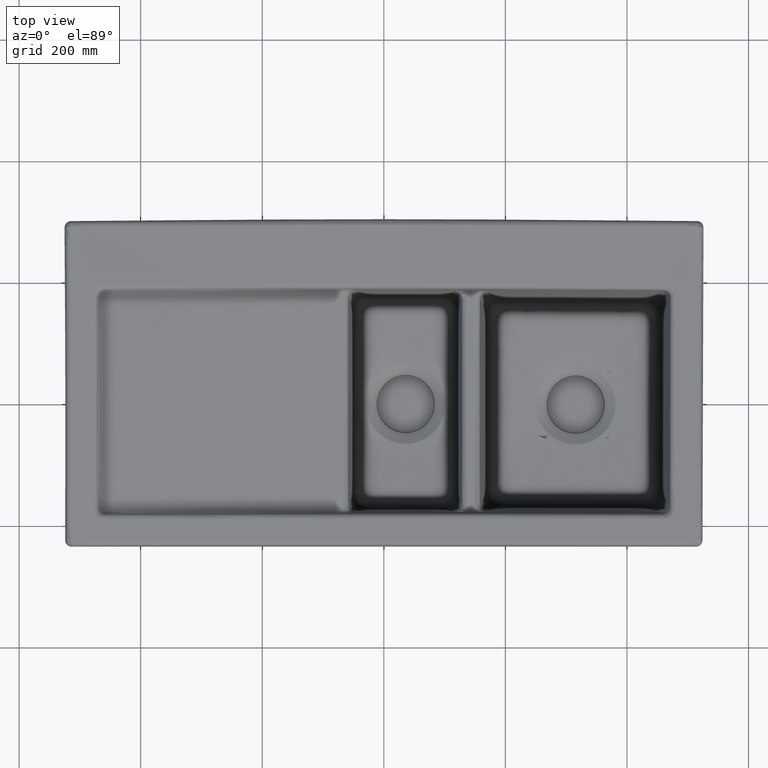
[diagram: clean part render]
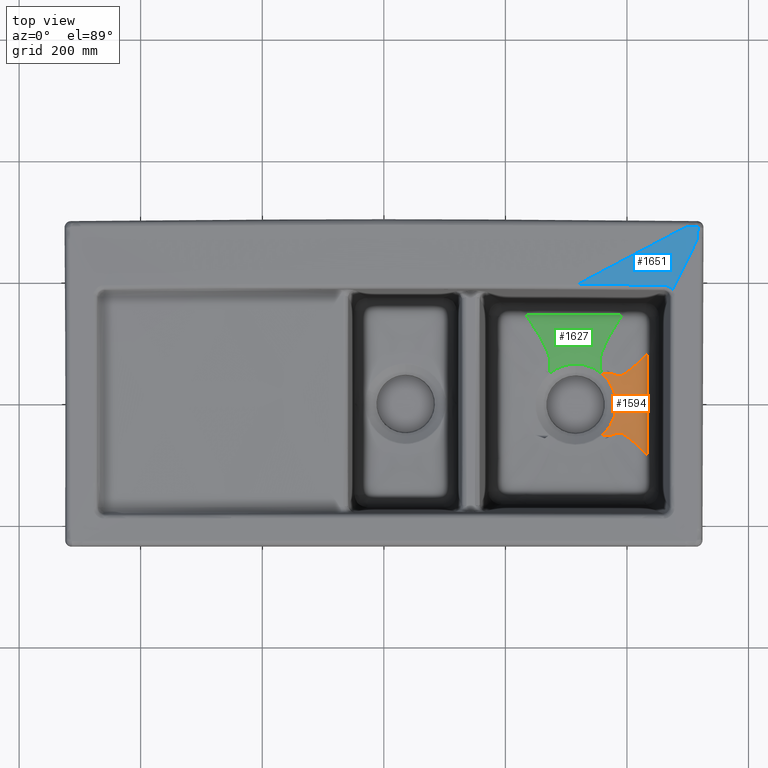
[diagram: same view with three faces highlighted in distinct colors, each labeled with its STEP entity id]
A machine part, top view with three faces highlighted in distinct colors.
Their STEP definitions:

[orange] entity #1594 — the highlighted face is a freeform B-spline surface patch.
#78=(
BOUNDED_CURVE()
B_SPLINE_CURVE(3,(#22522,#22523,#22524,#22525,#22526,#22527,#22528,#22529,
#22530,#22531,#22532,#22533,#22534,#22535,#22536,#22537,#22538,#22539,#22540,
#22541,#22542,#22543,#22544,#22545,#22546,#22547,#22548,#22549,#22550,#22551,
#22552,#22553,#22554,#22555,#22556,#22557,#22558,#22559,#22560,#22561,#22562,
#22563,#22564,#22565,#22566,#22567,#22568,#22569,#22570,#22571,#22572,#22573,
#22574,#22575,#22576,#22577),.UNSPECIFIED.,.F.,.F.)
B_SPLINE_CURVE_WITH_KNOTS((4,2,2,2,2,2,2,2,2,2,2,2,2,2,2,2,2,2,2,2,2,2,
2,2,2,2,2,4),(0.,0.0610077862834872,0.297296441340109,0.533585096396731,
0.65172942392504,0.76987375145335,0.828945915217506,0.88801807898166,0.9027861199227,
0.917554160863739,0.924938181334258,0.928630191569517,0.930476196687148,
0.931399199245962,0.931629949885666,0.931745325205519,0.931803012865445,
0.931860700525369,0.932091451165076,0.932322201804779,0.933245204363593,
0.934168206922407,0.936014212040038,0.939706222275297,0.947090242745816,
0.961858283686856,0.976626324627895,1.),.UNSPECIFIED.)
CURVE()
GEOMETRIC_REPRESENTATION_ITEM()
RATIONAL_B_SPLINE_CURVE((1.,1.,1.,1.,1.,1.,1.,1.,1.,1.,1.,1.,1.,1.,1.,1.,
1.,1.,1.,1.,1.,1.,1.,1.,1.,1.,1.,1.,1.,1.,1.,1.,1.,1.,1.,1.,1.,1.,1.,1.,
1.,1.,1.,1.,1.,1.,1.,1.,1.,1.,1.,1.,1.,1.,1.,1.))
REPRESENTATION_ITEM('')
);
#79=(
BOUNDED_CURVE()
B_SPLINE_CURVE(3,(#22586,#22587,#22588,#22589,#22590,#22591,#22592,#22593,
#22594,#22595,#22596,#22597,#22598,#22599,#22600,#22601,#22602,#22603,#22604,
#22605,#22606,#22607,#22608,#22609,#22610,#22611,#22612,#22613,#22614,#22615,
#22616,#22617,#22618,#22619,#22620,#22621,#22622,#22623,#22624,#22625,#22626,
#22627),.UNSPECIFIED.,.F.,.F.)
B_SPLINE_CURVE_WITH_KNOTS((4,2,2,2,2,2,2,2,2,2,2,2,2,2,2,2,2,2,2,2,4),(0.,
0.0232728312512966,0.0527888471191824,0.0601678510861527,0.067546855053125,
0.0712363570366114,0.0730811080283546,0.0740034835242249,0.0749258590200978,
0.0767706100118407,0.0786153610035816,0.0823048629870677,0.0970628709210108,
0.111820878854953,0.170852910590727,0.229884942326498,0.34794900579804,
0.466013069269584,0.702141196212669,0.938269323155755,1.),.UNSPECIFIED.)
CURVE()
GEOMETRIC_REPRESENTATION_ITEM()
RATIONAL_B_SPLINE_CURVE((1.,1.,1.,1.,1.,1.,1.,1.,1.,1.,1.,1.,1.,1.,1.,1.,
1.,1.,1.,1.,1.,1.,1.,1.,1.,1.,1.,1.,1.,1.,1.,1.,1.,1.,1.,1.,1.,1.,1.,1.,
1.,1.))
REPRESENTATION_ITEM('')
);
#203=B_SPLINE_SURFACE_WITH_KNOTS('',3,3,((#22628,#22629,#22630,#22631,#22632,
#22633,#22634),(#22635,#22636,#22637,#22638,#22639,#22640,#22641),(#22642,
#22643,#22644,#22645,#22646,#22647,#22648),(#22649,#22650,#22651,#22652,
#22653,#22654,#22655)),.UNSPECIFIED.,.F.,.F.,.F.,(4,4),(4,1,1,1,4),(0.,
1.),(0.,0.25,0.5,0.75,1.),.UNSPECIFIED.);
#1042=B_SPLINE_CURVE_WITH_KNOTS('',3,(#21048,#21049,#21050,#21051,#21052,
#21053,#21054,#21055,#21056,#21057,#21058,#21059,#21060,#21061,#21062,#21063,
#21064,#21065),.UNSPECIFIED.,.F.,.F.,(4,2,2,2,2,2,2,2,4),(0.,0.125,0.25,
0.375,0.5,0.625,0.75,0.875,1.),.UNSPECIFIED.);
#1096=B_SPLINE_CURVE_WITH_KNOTS('',3,(#22579,#22580,#22581,#22582,#22583,
#22584),.UNSPECIFIED.,.F.,.F.,(4,2,4),(0.,0.5,1.),.UNSPECIFIED.);
#1594=ADVANCED_FACE('',(#1989),#203,.T.);
#1989=FACE_OUTER_BOUND('',#2397,.T.);
#2397=EDGE_LOOP('',(#3833,#3834,#3835,#3836));
#3833=ORIENTED_EDGE('',*,*,#5621,.F.);
#3834=ORIENTED_EDGE('',*,*,#5622,.F.);
#3835=ORIENTED_EDGE('',*,*,#5623,.F.);
#3836=ORIENTED_EDGE('',*,*,#5563,.T.);
#4761=VERTEX_POINT('',#21046);
#4763=VERTEX_POINT('',#21066);
#4804=VERTEX_POINT('',#22578);
#4805=VERTEX_POINT('',#22585);
#5563=EDGE_CURVE('',#4763,#4761,#1042,.T.);
#5621=EDGE_CURVE('',#4804,#4761,#78,.T.);
#5622=EDGE_CURVE('',#4805,#4804,#1096,.T.);
#5623=EDGE_CURVE('',#4763,#4805,#79,.T.);
#21046=CARTESIAN_POINT('',(358.497882137644,-50.9419843686909,-210.040568185068));
#21048=CARTESIAN_POINT('',(358.456117570233,50.9724743340123,-210.040832312354));
#21049=CARTESIAN_POINT('',(362.17781623035,47.8255287612377,-210.038059094583));
#21050=CARTESIAN_POINT('',(365.526166861855,44.290679344002,-210.034414777755));
#21051=CARTESIAN_POINT('',(371.345259906873,36.6436435570495,-210.027400065886));
#21052=CARTESIAN_POINT('',(373.862285619254,32.4637716277503,-210.024140254946));
#21053=CARTESIAN_POINT('',(377.922186852448,23.6695797686334,-210.016516116105));
#21054=CARTESIAN_POINT('',(379.452067255022,19.1130760336596,-210.012137037443));
#21055=CARTESIAN_POINT('',(381.522179340143,9.68459408842349,-210.006904379918));
#21056=CARTESIAN_POINT('',(382.046411822399,4.80613131080027,-210.006357424514));
#21057=CARTESIAN_POINT('',(382.046334048298,-4.80907494312123,-210.006268906035));
#21058=CARTESIAN_POINT('',(381.531589129072,-9.63603193327556,-210.006714368558));
#21059=CARTESIAN_POINT('',(379.452365321756,-19.1219660223371,-210.011859524779));
#21060=CARTESIAN_POINT('',(377.91795031801,-23.6784567954392,-210.016218582862));
#21061=CARTESIAN_POINT('',(373.882437657384,-32.4271286000807,-210.02377004204));
#21062=CARTESIAN_POINT('',(371.349915641056,-36.6412222213121,-210.027062759324));
#21063=CARTESIAN_POINT('',(365.525323602622,-44.2967194900873,-210.034119425004));
#21064=CARTESIAN_POINT('',(362.217001993933,-47.7918459199433,-210.037751158434));
#21065=CARTESIAN_POINT('',(358.497922343538,-50.9419772118373,-210.040550014543));
#21066=CARTESIAN_POINT('',(358.45518391403,50.9732004148328,-210.040847818137));
#22522=CARTESIAN_POINT('',(433.202241627358,-83.0969867446801,-203.517666930961));
#22523=CARTESIAN_POINT('',(432.298799158883,-82.1785918657324,-203.616319376753));
#22524=CARTESIAN_POINT('',(431.394271292579,-81.2628077719636,-203.715220193982));
#22525=CARTESIAN_POINT('',(426.980637149954,-76.8136369703662,-204.198442188593));
#22526=CARTESIAN_POINT('',(423.454786759446,-73.3196658080626,-204.586429506773));
#22527=CARTESIAN_POINT('',(416.322224767708,-66.46337762036,-205.374089190607));
#22528=CARTESIAN_POINT('',(412.721503140097,-63.0976824201508,-205.773354508192));
#22529=CARTESIAN_POINT('',(407.145253609482,-58.2328373162663,-206.389579945));
#22530=CARTESIAN_POINT('',(405.256773551867,-56.6420899856889,-206.597922914085));
#22531=CARTESIAN_POINT('',(401.350011632034,-53.5649543305447,-207.025353930384));
#22532=CARTESIAN_POINT('',(399.34059962421,-52.0748700811842,-207.243855095961));
#22533=CARTESIAN_POINT('',(396.06262441446,-50.0048940434848,-207.590832450459));
#22534=CARTESIAN_POINT('',(394.925995499988,-49.3425170001398,-207.709698969681));
#22535=CARTESIAN_POINT('',(392.456361872084,-48.123415604103,-207.960917691198));
#22536=CARTESIAN_POINT('',(391.156016598341,-47.5524835029997,-208.091149268023));
#22537=CARTESIAN_POINT('',(389.103611163306,-47.0390936434378,-208.28205920733));
#22538=CARTESIAN_POINT('',(388.669465899272,-46.9475414558696,-208.321793065612));
#22539=CARTESIAN_POINT('',(387.701766651594,-46.809469841025,-208.40775935332));
#22540=CARTESIAN_POINT('',(387.182259155792,-46.7569032377426,-208.45308094106));
#22541=CARTESIAN_POINT('',(386.156176365845,-46.7866035874812,-208.537155205776));
#22542=CARTESIAN_POINT('',(385.78263621935,-46.8105837641516,-208.567251662851));
#22543=CARTESIAN_POINT('',(384.983643948205,-46.9492508479324,-208.627817224955));
#22544=CARTESIAN_POINT('',(384.688509589242,-47.0080883106319,-208.649890025732));
#22545=CARTESIAN_POINT('',(384.00219980727,-47.1989472106145,-208.698525105319));
#22546=CARTESIAN_POINT('',(383.750274275495,-47.2726168935291,-208.716246673118));
#22547=CARTESIAN_POINT('',(383.082930523105,-47.5024883990486,-208.760991642048));
#22548=CARTESIAN_POINT('',(382.878888524071,-47.5724660618343,-208.774864686034));
#22549=CARTESIAN_POINT('',(382.133287256721,-47.8576066057858,-208.822435004912));
#22550=CARTESIAN_POINT('',(381.975080546356,-47.9185254998789,-208.8325348522));
#22551=CARTESIAN_POINT('',(381.47141962884,-48.1153498409861,-208.863871950859));
#22552=CARTESIAN_POINT('',(381.302969582943,-48.1825130671538,-208.874494432316));
#22553=CARTESIAN_POINT('',(380.489368182098,-48.4984830944025,-208.923714373373));
#22554=CARTESIAN_POINT('',(380.138063528194,-48.6331734392792,-208.94467639348));
#22555=CARTESIAN_POINT('',(379.703523038747,-48.7970399407256,-208.970382685634));
#22556=CARTESIAN_POINT('',(379.559902203933,-48.8500193891377,-208.978802711669));
#22557=CARTESIAN_POINT('',(378.926863625666,-49.082479042273,-209.015838082908));
#22558=CARTESIAN_POINT('',(378.707603545702,-49.1574912556255,-209.028372400226));
#22559=CARTESIAN_POINT('',(378.265646610673,-49.3096884438014,-209.05373709918));
#22560=CARTESIAN_POINT('',(378.092013174723,-49.3677540957528,-209.063631907388));
#22561=CARTESIAN_POINT('',(377.311173038524,-49.6251294460145,-209.107997310148));
#22562=CARTESIAN_POINT('',(376.941124567074,-49.73491714791,-209.128597860609));
#22563=CARTESIAN_POINT('',(376.255296022998,-49.9348196416442,-209.166714459715));
#22564=CARTESIAN_POINT('',(375.971211361151,-50.0128544155562,-209.182363687106));
#22565=CARTESIAN_POINT('',(375.19457895276,-50.2190533212344,-209.224954969865));
#22566=CARTESIAN_POINT('',(374.779697077611,-50.3185179178542,-209.247418773673));
#22567=CARTESIAN_POINT('',(373.648139858525,-50.5756728678319,-209.308333569726));
#22568=CARTESIAN_POINT('',(373.052917656836,-50.6889364215,-209.339816357627));
#22569=CARTESIAN_POINT('',(371.425955022789,-50.9717091755561,-209.425207519728));
#22570=CARTESIAN_POINT('',(370.570962575127,-51.0774197196436,-209.46900831738));
#22571=CARTESIAN_POINT('',(368.22285176413,-51.3179292526264,-209.587986587736));
#22572=CARTESIAN_POINT('',(366.976761619257,-51.3648784299068,-209.648999006814));
#22573=CARTESIAN_POINT('',(364.681548996327,-51.3906413475778,-209.759510972043));
#22574=CARTESIAN_POINT('',(363.652823801963,-51.3621973380754,-209.80785246511));
#22575=CARTESIAN_POINT('',(361.156985923523,-51.2337354783561,-209.923144923965));
#22576=CARTESIAN_POINT('',(359.785791715356,-51.1030655084614,-209.984413315316));
#22577=CARTESIAN_POINT('',(358.497862853593,-50.9419365542304,-210.040593918986));
#22578=CARTESIAN_POINT('',(433.202246314796,-83.0963916593351,-203.517666470247));
#22579=CARTESIAN_POINT('',(433.487753638027,83.7206437342547,-203.515454341389));
#22580=CARTESIAN_POINT('',(433.624520249142,55.9175676126171,-203.630298177664));
#22581=CARTESIAN_POINT('',(433.741142538529,28.1145621965469,-203.712195861682));
#22582=CARTESIAN_POINT('',(433.646936300709,-27.4909281997848,-203.713160765162));
#22583=CARTESIAN_POINT('',(433.435450804278,-55.293363245286,-203.632160836081));
#22584=CARTESIAN_POINT('',(433.202251000344,-83.0957967728058,-203.517666007785));
#22585=CARTESIAN_POINT('',(433.487591358513,83.7213080526835,-203.515470179784));
#22586=CARTESIAN_POINT('',(358.455170751092,50.9739435331308,-210.040835569174));
#22587=CARTESIAN_POINT('',(359.711436104165,51.1426505314235,-209.985970149013));
#22588=CARTESIAN_POINT('',(361.042853257536,51.283565332736,-209.926422899165));
#22589=CARTESIAN_POINT('',(364.369848306532,51.5008285031027,-209.772769311274));
#22590=CARTESIAN_POINT('',(366.368203510601,51.5759299854346,-209.67826804191));
#22591=CARTESIAN_POINT('',(369.816225735532,51.3278810686371,-209.504544416725));
#22592=CARTESIAN_POINT('',(370.559208811997,51.2590547506645,-209.466683121784));
#22593=CARTESIAN_POINT('',(372.269250384943,51.0395732502656,-209.377927120536));
#22594=CARTESIAN_POINT('',(373.204141949361,50.9011740569809,-209.328930878275));
#22595=CARTESIAN_POINT('',(375.160669831048,50.4870134932231,-209.22306635297));
#22596=CARTESIAN_POINT('',(375.872711492668,50.3273884065541,-209.184357687507));
#22597=CARTESIAN_POINT('',(377.539979453154,49.8585430271654,-209.090741475446));
#22598=CARTESIAN_POINT('',(378.155275917794,49.6817686248559,-209.056289354291));
#22599=CARTESIAN_POINT('',(379.852942379618,49.1051042874396,-208.956851157082));
#22600=CARTESIAN_POINT('',(380.660673749925,48.814285686516,-208.908630306323));
#22601=CARTESIAN_POINT('',(381.938959665404,48.3441225237516,-208.829818646266));
#22602=CARTESIAN_POINT('',(382.346536511408,48.1945473476558,-208.803677715479));
#22603=CARTESIAN_POINT('',(383.292446815997,47.8582088519066,-208.742412342732));
#22604=CARTESIAN_POINT('',(383.62123146846,47.7536721844454,-208.719907371731));
#22605=CARTESIAN_POINT('',(384.208783675635,47.5750739363681,-208.679483839251));
#22606=CARTESIAN_POINT('',(384.434300357778,47.5137648461778,-208.663531590522));
#22607=CARTESIAN_POINT('',(385.03325866329,47.3623835530163,-208.620600499603));
#22608=CARTESIAN_POINT('',(385.325890890995,47.3060538587573,-208.598733217008));
#22609=CARTESIAN_POINT('',(386.629996828593,47.0929028483154,-208.499675806454));
#22610=CARTESIAN_POINT('',(387.204150177901,47.123668252031,-208.450647266386));
#22611=CARTESIAN_POINT('',(388.324584210431,47.2013769491297,-208.354662799675));
#22612=CARTESIAN_POINT('',(388.800212232123,47.2778441214098,-208.312205635962));
#22613=CARTESIAN_POINT('',(391.019650707724,47.7331831948536,-208.110392506076));
#22614=CARTESIAN_POINT('',(392.336208400936,48.3096747368513,-207.979222781824));
#22615=CARTESIAN_POINT('',(394.861510806282,49.5299928463952,-207.724621305581));
#22616=CARTESIAN_POINT('',(396.014534020013,50.1981115989266,-207.604829765402));
#22617=CARTESIAN_POINT('',(399.335163672986,52.2882072321302,-207.255517976198));
#22618=CARTESIAN_POINT('',(401.362193271324,53.7965127148559,-207.036189174804));
#22619=CARTESIAN_POINT('',(405.302194246368,56.9109341878643,-206.607250006661));
#22620=CARTESIAN_POINT('',(407.205514583251,58.5215909981511,-206.398262249277));
#22621=CARTESIAN_POINT('',(412.824657734749,63.4471341175396,-205.780227031532));
#22622=CARTESIAN_POINT('',(416.451476287113,66.8544430271478,-205.379952527326));
#22623=CARTESIAN_POINT('',(423.635968142943,73.7941761078057,-204.590346820213));
#22624=CARTESIAN_POINT('',(427.187140517685,77.3298275686295,-204.201467883306));
#22625=CARTESIAN_POINT('',(431.643956568073,81.8428575411209,-203.715920334014));
#22626=CARTESIAN_POINT('',(432.566406981061,82.7810206199454,-203.615559996245));
#22627=CARTESIAN_POINT('',(433.487748302931,83.7218576782189,-203.515455434946));
#22628=CARTESIAN_POINT('',(450.577156144425,164.034894348946,-201.680685949538));
#22629=CARTESIAN_POINT('',(450.555255580338,136.77198589414,-201.680685949538));
#22630=CARTESIAN_POINT('',(450.498717115148,82.2461792165595,-201.680685949538));
#22631=CARTESIAN_POINT('',(450.375697437282,0.457517749049612,-201.680685949538));
#22632=CARTESIAN_POINT('',(450.214465810303,-81.3310773168306,-201.680685949538));
#22633=CARTESIAN_POINT('',(450.081503446886,-135.856751191152,-201.680685949538));
#22634=CARTESIAN_POINT('',(450.008653617313,-163.119571110452,-201.680685949538));
#22635=CARTESIAN_POINT('',(419.537842002425,126.300764839308,-204.481806397538));
#22636=CARTESIAN_POINT('',(422.009059978592,106.072808538295,-204.481806397538));
#22637=CARTESIAN_POINT('',(426.02312395467,64.5063016497581,-204.481806397538));
#22638=CARTESIAN_POINT('',(428.107660104709,0.312084361775911,-204.481806397538));
#22639=CARTESIAN_POINT('',(425.840465040064,-63.8836192933576,-204.481806397538));
#22640=CARTESIAN_POINT('',(421.703759024827,-105.452903372885,-204.481806397538));
#22641=CARTESIAN_POINT('',(419.170827225916,-125.682559107282,-204.481806397538));
#22642=CARTESIAN_POINT('',(388.498527860424,88.5666353296706,-207.282926845538));
#22643=CARTESIAN_POINT('',(393.462864376847,75.3736311824505,-207.282926845538));
#22644=CARTESIAN_POINT('',(401.547530794194,46.7664240829565,-207.282926845539));
#22645=CARTESIAN_POINT('',(405.839622772135,0.166650974502186,-207.282926845538));
#22646=CARTESIAN_POINT('',(401.466464269824,-46.4361612698847,-207.282926845538));
#22647=CARTESIAN_POINT('',(393.326014602768,-75.0490555546186,-207.282926845538));
#22648=CARTESIAN_POINT('',(388.333000834518,-88.2455471041116,-207.282926845538));
#22649=CARTESIAN_POINT('',(357.459213718424,50.832505820033,-210.084047293538));
#22650=CARTESIAN_POINT('',(364.916668775101,44.6744538266056,-210.084047293538));
#22651=CARTESIAN_POINT('',(377.071937633717,29.0265465161551,-210.084047293538));
#22652=CARTESIAN_POINT('',(383.571585439562,0.0212175872284802,-210.084047293538));
#22653=CARTESIAN_POINT('',(377.092463499585,-28.9887032464116,-210.084047293538));
#22654=CARTESIAN_POINT('',(364.948270180709,-44.645207736352,-210.084047293538));
#22655=CARTESIAN_POINT('',(357.495174443119,-50.8085351009416,-210.084047293538));

[blue] entity #1651 — the highlighted face is a freeform B-spline surface patch.
#220=B_SPLINE_SURFACE_WITH_KNOTS('',3,3,((#25985,#25986,#25987,#25988,#25989,
#25990,#25991,#25992),(#25993,#25994,#25995,#25996,#25997,#25998,#25999,
#26000),(#26001,#26002,#26003,#26004,#26005,#26006,#26007,#26008),(#26009,
#26010,#26011,#26012,#26013,#26014,#26015,#26016),(#26017,#26018,#26019,
#26020,#26021,#26022,#26023,#26024)),.UNSPECIFIED.,.F.,.F.,.F.,(4,1,4),
(4,1,2,1,4),(0.,0.908887970062574,1.),(0.,8.19642226482332E-5,0.250061473166986,
0.500040982111324,1.),.UNSPECIFIED.);
#1141=B_SPLINE_CURVE_WITH_KNOTS('',3,(#24036,#24037,#24038,#24039,#24040,
#24041,#24042,#24043,#24044,#24045),.UNSPECIFIED.,.F.,.F.,(4,3,3,4),(0.,
0.239048257565316,0.56542278300815,1.),.UNSPECIFIED.);
#1143=B_SPLINE_CURVE_WITH_KNOTS('',3,(#24059,#24060,#24061,#24062,#24063,
#24064,#24065,#24066,#24067,#24068,#24069,#24070,#24071,#24072),
 .UNSPECIFIED.,.F.,.F.,(4,2,2,2,2,2,4),(0.,0.249999999999996,0.37499999999999,
0.437499999999987,0.468749999999985,0.499999999999983,1.),.UNSPECIFIED.);
#1144=B_SPLINE_CURVE_WITH_KNOTS('',3,(#24087,#24088,#24089,#24090,#24091,
#24092),.UNSPECIFIED.,.F.,.F.,(4,2,4),(0.,0.5,1.),.UNSPECIFIED.);
#1145=B_SPLINE_CURVE_WITH_KNOTS('',3,(#24113,#24114,#24115,#24116),
 .UNSPECIFIED.,.F.,.F.,(4,4),(0.,1.),.UNSPECIFIED.);
#1174=B_SPLINE_CURVE_WITH_KNOTS('',3,(#25029,#25030,#25031,#25032,#25033,
#25034),.UNSPECIFIED.,.F.,.F.,(4,2,4),(0.,0.5,1.),.UNSPECIFIED.);
#1208=B_SPLINE_CURVE_WITH_KNOTS('',3,(#25962,#25963,#25964,#25965,#25966,
#25967,#25968,#25969,#25970,#25971,#25972,#25973,#25974,#25975),
 .UNSPECIFIED.,.F.,.F.,(4,2,2,1,1,2,2,4),(0.,0.249999999999994,0.374999999999992,
0.43749999999999,0.46874999999999,0.48437499999999,0.49999999999999,1.),
 .UNSPECIFIED.);
#1209=B_SPLINE_CURVE_WITH_KNOTS('',3,(#25977,#25978,#25979,#25980,#25981,
#25982,#25983,#25984),.UNSPECIFIED.,.F.,.F.,(4,2,2,4),(0.,0.25,0.5,1.),
 .UNSPECIFIED.);
#1651=ADVANCED_FACE('',(#2045),#220,.T.);
#2045=FACE_OUTER_BOUND('',#2455,.T.);
#2455=EDGE_LOOP('',(#4092,#4093,#4094,#4095,#4096,#4097,#4098));
#4092=ORIENTED_EDGE('',*,*,#5674,.T.);
#4093=ORIENTED_EDGE('',*,*,#5676,.T.);
#4094=ORIENTED_EDGE('',*,*,#5678,.T.);
#4095=ORIENTED_EDGE('',*,*,#5680,.T.);
#4096=ORIENTED_EDGE('',*,*,#5758,.F.);
#4097=ORIENTED_EDGE('',*,*,#5759,.F.);
#4098=ORIENTED_EDGE('',*,*,#5716,.T.);
#4777=VERTEX_POINT('',#21444);
#4837=VERTEX_POINT('',#24046);
#4838=VERTEX_POINT('',#24073);
#4839=VERTEX_POINT('',#24093);
#4840=VERTEX_POINT('',#24117);
#4862=VERTEX_POINT('',#25022);
#4883=VERTEX_POINT('',#25976);
#5674=EDGE_CURVE('',#4837,#4777,#1141,.T.);
#5676=EDGE_CURVE('',#4777,#4838,#1143,.T.);
#5678=EDGE_CURVE('',#4838,#4839,#1144,.T.);
#5680=EDGE_CURVE('',#4839,#4840,#1145,.T.);
#5716=EDGE_CURVE('',#4862,#4837,#1174,.T.);
#5758=EDGE_CURVE('',#4883,#4840,#1208,.T.);
#5759=EDGE_CURVE('',#4862,#4883,#1209,.T.);
#21444=CARTESIAN_POINT('',(516.446736534157,269.01305745754,-0.175441380758714));
#24036=CARTESIAN_POINT('',(475.208255054806,184.960913218194,-0.980098338971812));
#24037=CARTESIAN_POINT('',(478.494250644398,191.658419032928,-0.915936697720103));
#24038=CARTESIAN_POINT('',(481.780246284851,198.355924951329,-0.851788481592517));
#24039=CARTESIAN_POINT('',(485.066241967431,205.053430955591,-0.787651391158569));
#24040=CARTESIAN_POINT('',(489.55263853201,214.197590239811,-0.700084501247419));
#24041=CARTESIAN_POINT('',(494.039035174998,223.341749683845,-0.612538315514412));
#24042=CARTESIAN_POINT('',(498.525431879677,232.485909253617,-0.525008430012553));
#24043=CARTESIAN_POINT('',(504.499200180349,244.661624904711,-0.408459829923975));
#24044=CARTESIAN_POINT('',(510.472968590235,256.837340778409,-0.291940080894623));
#24045=CARTESIAN_POINT('',(516.446737081629,269.013056818233,-0.175441877463997));
#24046=CARTESIAN_POINT('',(475.208255031958,184.960913136863,-0.980098339411022));
#24059=CARTESIAN_POINT('',(516.446739448505,269.013061698168,-0.175440476057008));
#24060=CARTESIAN_POINT('',(516.477897712985,270.70789378029,-0.175282992977767));
#24061=CARTESIAN_POINT('',(516.50576241237,272.314221265255,-0.173986251019491));
#24062=CARTESIAN_POINT('',(516.550704697397,274.591043736892,-0.170160034224742));
#24063=CARTESIAN_POINT('',(516.566032306476,275.32787112336,-0.168577284339778));
#24064=CARTESIAN_POINT('',(516.588958392306,276.399935266358,-0.165769233253593));
#24065=CARTESIAN_POINT('',(516.596578447174,276.751760367667,-0.164761194433995));
#24066=CARTESIAN_POINT('',(516.607802594273,277.271201640288,-0.16314689483246));
#24067=CARTESIAN_POINT('',(516.611508961211,277.442965993547,-0.162591769867729));
#24068=CARTESIAN_POINT('',(516.618814520267,277.783728805503,-0.161448603040562));
#24069=CARTESIAN_POINT('',(516.621609605125,277.914483599834,-0.160998345650365));
#24070=CARTESIAN_POINT('',(516.695191866453,281.414085498419,-0.148389994197248));
#24071=CARTESIAN_POINT('',(516.763588000939,284.449640757612,-0.12863104705671));
#24072=CARTESIAN_POINT('',(516.828790846848,287.226956899292,-0.102529113809366));
#24073=CARTESIAN_POINT('',(516.828790846848,287.226956899292,-0.102529113812705));
#24087=CARTESIAN_POINT('',(516.828790846849,287.226956899293,-0.102529113809354));
#24088=CARTESIAN_POINT('',(516.842083688606,287.796349433827,-0.0971781579177916));
#24089=CARTESIAN_POINT('',(516.64999671882,288.300684348284,-0.093061072673536));
#24090=CARTESIAN_POINT('',(515.851894427042,289.119469935868,-0.0855100257305097));
#24091=CARTESIAN_POINT('',(515.378333896411,289.328156243465,-0.0832160697923159));
#24092=CARTESIAN_POINT('',(514.787501006382,289.335661667216,-0.0835268603915914));
#24093=CARTESIAN_POINT('',(514.787501006382,289.335661667216,-0.0835268603915912));
#24113=CARTESIAN_POINT('',(514.787501006383,289.335661667216,-0.0835268603915934));
#24114=CARTESIAN_POINT('',(510.484324661276,289.389987663788,-0.0857942951637962));
#24115=CARTESIAN_POINT('',(505.23769233254,289.456601389833,-0.0802014256164676));
#24116=CARTESIAN_POINT('',(499.082623764876,289.535899487059,-0.0801170300530998));
#24117=CARTESIAN_POINT('',(499.08250376496,289.53557961454,-0.0801200516222219));
#25022=CARTESIAN_POINT('',(459.896632546471,192.681304564644,-1.21769703776755));
#25029=CARTESIAN_POINT('',(459.896642472061,192.681586267081,-1.21769580720752));
#25030=CARTESIAN_POINT('',(462.884460708328,192.660739915363,-1.17978188603772));
#25031=CARTESIAN_POINT('',(465.826155954547,191.956508175506,-1.13966769757462));
#25032=CARTESIAN_POINT('',(471.096978977319,189.312471686787,-1.05781496839192));
#25033=CARTESIAN_POINT('',(473.430876268721,187.364239248272,-1.01599849621216));
#25034=CARTESIAN_POINT('',(475.208255054805,184.960913218194,-0.980098338971812));
#25962=CARTESIAN_POINT('',(318.624146316854,193.900655174319,-0.981208514046513));
#25963=CARTESIAN_POINT('',(333.396850165145,201.729553887878,-0.90771814447743));
#25964=CARTESIAN_POINT('',(348.302584278535,209.628999317122,-0.833496665378091));
#25965=CARTESIAN_POINT('',(370.860159625945,221.583545979832,-0.721067782433697));
#25966=CARTESIAN_POINT('',(378.412509117079,225.585958351986,-0.683408710736334));
#25967=CARTESIAN_POINT('',(389.790656636266,231.615870603105,-0.626645937116445));
#25968=CARTESIAN_POINT('',(395.492135780334,234.637400190641,-0.598196008788038));
#25969=CARTESIAN_POINT('',(402.165541484878,238.17401074161,-0.564884478080923));
#25970=CARTESIAN_POINT('',(405.030214780576,239.692162562101,-0.550582404708451));
#25971=CARTESIAN_POINT('',(406.941028204905,240.70481066893,-0.541041977333598));
#25972=CARTESIAN_POINT('',(407.92963754297,241.228730879714,-0.536105686742481));
#25973=CARTESIAN_POINT('',(438.413411619567,257.383820595773,-0.383886439115526));
#25974=CARTESIAN_POINT('',(468.49098213265,273.323643006569,-0.233427809594995));
#25975=CARTESIAN_POINT('',(499.082623763513,289.535899490232,-0.0801170937073426));
#25976=CARTESIAN_POINT('',(318.624146245888,193.900655148922,-0.981208464271422));
#25977=CARTESIAN_POINT('',(459.896607891893,192.68102335113,-1.21769845371918));
#25978=CARTESIAN_POINT('',(448.124403429845,192.763263386739,-1.36708291627075));
#25979=CARTESIAN_POINT('',(436.35182958095,192.843828852218,-1.43834682564091));
#25980=CARTESIAN_POINT('',(412.805984328625,193.002790459094,-1.43186978111333));
#25981=CARTESIAN_POINT('',(401.033018492145,193.084175792302,-1.32276253195519));
#25982=CARTESIAN_POINT('',(365.715727955275,193.46529397869,-1.06471200861281));
#25983=CARTESIAN_POINT('',(342.170240034224,193.695291546041,-0.98152015566927));
#25984=CARTESIAN_POINT('',(318.624146174742,193.900655098453,-0.981208454740543));
#25985=CARTESIAN_POINT('',(471.634408928302,177.619493632134,-1.04987493624814));
#25986=CARTESIAN_POINT('',(471.62529012979,177.619980297515,-1.05005672450354));
#25987=CARTESIAN_POINT('',(443.805099472892,179.104728827215,-1.60453215631094));
#25988=CARTESIAN_POINT('',(415.980759020357,180.589363462317,-1.74610456107419));
#25989=CARTESIAN_POINT('',(360.34202428227,183.557431836556,-1.20389177892801));
#25990=CARTESIAN_POINT('',(276.888062592877,188.009427264527,-0.779313776926908));
#25991=CARTESIAN_POINT('',(193.446522156701,192.461101292333,-1.52095928858034));
#25992=CARTESIAN_POINT('',(137.818828532584,195.428883977538,-2.01538962968262));
#25993=CARTESIAN_POINT('',(489.571442696396,214.196033683939,-0.699585838582428));
#25994=CARTESIAN_POINT('',(489.565174488106,214.196552222416,-0.699711524522477));
#25995=CARTESIAN_POINT('',(470.441739570113,215.778541154453,-1.08306882370771));
#25996=CARTESIAN_POINT('',(451.315396510297,217.360433604829,-1.18243997761587));
#25997=CARTESIAN_POINT('',(413.069436242921,220.522988655049,-0.813517126543371));
#25998=CARTESIAN_POINT('',(355.703382360537,225.266693998358,-0.517340940470798));
#25999=CARTESIAN_POINT('',(298.345988034189,230.010017645601,-0.992789026006754));
#26000=CARTESIAN_POINT('',(260.107725149958,233.17223341043,-1.30975441636406));
#26001=CARTESIAN_POINT('',(509.306587215228,254.439214469193,-0.314625954778342));
#26002=CARTESIAN_POINT('',(509.30345530046,254.439768170402,-0.314689048800347));
#26003=CARTESIAN_POINT('',(499.748417341283,256.129033656985,-0.507134139697735));
#26004=CARTESIAN_POINT('',(490.191958187287,257.818018649918,-0.559162303979106));
#26005=CARTESIAN_POINT('',(471.082464114194,261.194320797703,-0.382534743298782));
#26006=CARTESIAN_POINT('',(442.419656556003,266.258716659134,-0.228203900867133));
#26007=CARTESIAN_POINT('',(413.761149652159,271.322940439822,-0.405704554201993));
#26008=CARTESIAN_POINT('',(394.655478382928,274.699089626948,-0.524038323091901));
#26009=CARTESIAN_POINT('',(529.041732100947,294.682397215083,0.0701519931728121));
#26010=CARTESIAN_POINT('',(529.041736585098,294.682985889464,0.0701519080316443));
#26011=CARTESIAN_POINT('',(529.055417055868,296.478949744944,0.0698908759265835));
#26012=CARTESIAN_POINT('',(529.068939099569,298.274850902046,0.0657295525891747));
#26013=CARTESIAN_POINT('',(529.095657676103,301.865350594037,0.0496141642698648));
#26014=CARTESIAN_POINT('',(529.135797146884,307.250960922426,0.0624538626433942));
#26015=CARTESIAN_POINT('',(529.176121435597,312.636153622021,0.186331903574406));
#26016=CARTESIAN_POINT('',(529.203004294739,316.226282088419,0.26891726419508));
#26017=CARTESIAN_POINT('',(530.839841215335,298.349035300848,0.105208534166363));
#26018=CARTESIAN_POINT('',(530.840131463945,298.349627160291,0.10521419300662));
#26019=CARTESIAN_POINT('',(531.725639695907,300.155308202155,0.122472940354634));
#26020=CARTESIAN_POINT('',(532.611102879688,301.960949390597,0.122676774824567));
#26021=CARTESIAN_POINT('',(534.381358742263,305.570968420135,0.0889968415038604));
#26022=CARTESIAN_POINT('',(537.036679746536,310.985849164144,0.0889476401197149));
#26023=CARTESIAN_POINT('',(539.691812382041,316.400286507261,0.240310534526314));
#26024=CARTESIAN_POINT('',(541.461900805711,320.009911402674,0.34121913079738));

[green] entity #1627 — the highlighted face is a freeform B-spline surface patch.
#85=(
BOUNDED_CURVE()
B_SPLINE_CURVE(3,(#24767,#24768,#24769,#24770,#24771,#24772,#24773,#24774,
#24775,#24776,#24777,#24778,#24779,#24780,#24781,#24782,#24783,#24784,#24785,
#24786,#24787,#24788,#24789,#24790,#24791,#24792,#24793,#24794,#24795,#24796,
#24797,#24798,#24799,#24800,#24801,#24802,#24803,#24804,#24805,#24806,#24807,
#24808),.UNSPECIFIED.,.F.,.F.)
B_SPLINE_CURVE_WITH_KNOTS((4,2,2,2,2,2,2,2,2,2,2,2,2,2,2,2,2,2,2,2,4),(0.,
0.329023824247799,0.498018952772632,0.667014081297463,0.75151164555988,
0.836009209822295,0.878257991953503,0.920506774084712,0.931068969617514,
0.941631165150316,0.944271714033517,0.945591988475116,0.946912262916716,
0.947572400137517,0.948232537358317,0.949552811799917,0.952193360683118,
0.95747445844952,0.96275555621592,0.983879947281524,1.),.UNSPECIFIED.)
CURVE()
GEOMETRIC_REPRESENTATION_ITEM()
RATIONAL_B_SPLINE_CURVE((1.,1.,1.,1.,1.,1.,1.,1.,1.,1.,1.,1.,1.,1.,1.,1.,
1.,1.,1.,1.,1.,1.,1.,1.,1.,1.,1.,1.,1.,1.,1.,1.,1.,1.,1.,1.,1.,1.,1.,1.,
1.,1.))
REPRESENTATION_ITEM('')
);
#213=B_SPLINE_SURFACE_WITH_KNOTS('',3,3,((#24814,#24815,#24816,#24817,#24818,
#24819,#24820),(#24821,#24822,#24823,#24824,#24825,#24826,#24827),(#24828,
#24829,#24830,#24831,#24832,#24833,#24834),(#24835,#24836,#24837,#24838,
#24839,#24840,#24841)),.UNSPECIFIED.,.F.,.F.,.F.,(4,4),(4,1,1,1,4),(0.,
1.),(0.,0.25,0.5,0.75,1.),.UNSPECIFIED.);
#1095=B_SPLINE_CURVE_WITH_KNOTS('',3,(#22470,#22471,#22472,#22473,#22474,
#22475,#22476,#22477,#22478,#22479),.UNSPECIFIED.,.F.,.F.,(4,2,2,2,4),(0.,
0.25,0.5,0.75,1.),.UNSPECIFIED.);
#1167=B_SPLINE_CURVE_WITH_KNOTS('',3,(#24637,#24638,#24639,#24640,#24641,
#24642,#24643,#24644,#24645,#24646,#24647,#24648,#24649,#24650,#24651,#24652,
#24653,#24654,#24655,#24656,#24657,#24658,#24659,#24660,#24661,#24662,#24663,
#24664,#24665,#24666,#24667,#24668,#24669,#24670,#24671,#24672,#24673,#24674,
#24675,#24676,#24677,#24678,#24679,#24680,#24681,#24682,#24683,#24684,#24685,
#24686,#24687,#24688,#24689,#24690,#24691,#24692,#24693),.UNSPECIFIED.,
 .F.,.F.,(4,2,2,1,2,2,2,2,2,2,2,2,2,2,2,2,2,2,2,2,2,2,2,2,2,2,2,2,4),(0.,
0.250000000000002,0.257812500000003,0.265625000000004,0.281250000000005,
0.312500000000006,0.375000000000009,0.390625000000009,0.40625000000001,
0.437500000000011,0.500000000000013,0.515625000000013,0.531250000000013,
0.562500000000014,0.625000000000016,0.640625000000016,0.656250000000015,
0.687500000000015,0.750000000000013,0.765625000000012,0.781250000000011,
0.812500000000009,0.828125000000009,0.843750000000008,0.875000000000006,
0.890625000000005,0.906250000000004,0.937500000000003,1.),.UNSPECIFIED.);
#1169=B_SPLINE_CURVE_WITH_KNOTS('',3,(#24810,#24811,#24812,#24813),
 .UNSPECIFIED.,.F.,.F.,(4,4),(0.,1.),.UNSPECIFIED.);
#1627=ADVANCED_FACE('',(#2021),#213,.T.);
#2021=FACE_OUTER_BOUND('',#2431,.T.);
#2431=EDGE_LOOP('',(#3985,#3986,#3987,#3988));
#3985=ORIENTED_EDGE('',*,*,#5708,.F.);
#3986=ORIENTED_EDGE('',*,*,#5709,.F.);
#3987=ORIENTED_EDGE('',*,*,#5706,.T.);
#3988=ORIENTED_EDGE('',*,*,#5620,.T.);
#4802=VERTEX_POINT('',#22433);
#4803=VERTEX_POINT('',#22469);
#4857=VERTEX_POINT('',#24694);
#4858=VERTEX_POINT('',#24809);
#5620=EDGE_CURVE('',#4802,#4803,#1095,.T.);
#5706=EDGE_CURVE('',#4857,#4802,#1167,.T.);
#5708=EDGE_CURVE('',#4858,#4803,#85,.T.);
#5709=EDGE_CURVE('',#4857,#4858,#1169,.T.);
#22433=CARTESIAN_POINT('',(272.648740281955,51.0960976284034,-210.042109454971));
#22469=CARTESIAN_POINT('',(357.411298682924,51.8354826885498,-210.040886523719));
#22470=CARTESIAN_POINT('',(272.64878559532,51.0961540981809,-210.042118376114));
#22471=CARTESIAN_POINT('',(278.577938327766,56.0537976171994,-210.038437041021));
#22472=CARTESIAN_POINT('',(285.159229889538,59.8535110773076,-210.034385262479));
#22473=CARTESIAN_POINT('',(299.607313188007,65.1704206742912,-210.02725449672));
#22474=CARTESIAN_POINT('',(307.159300210076,66.551116542515,-210.024710559329));
#22475=CARTESIAN_POINT('',(322.578680635702,66.6914093395295,-210.024232958119));
#22476=CARTESIAN_POINT('',(330.133241078116,65.4558172603601,-210.026305403939));
#22477=CARTESIAN_POINT('',(344.716836339938,60.3904576256086,-210.033051690436));
#22478=CARTESIAN_POINT('',(351.396250711043,56.6882542371415,-210.037121326243));
#22479=CARTESIAN_POINT('',(357.411301734006,51.8354920704417,-210.040887739001));
#24637=CARTESIAN_POINT('',(233.623769661433,147.676305488496,-203.062031301531));
#24638=CARTESIAN_POINT('',(239.309623357955,139.470656335679,-203.71376428868));
#24639=CARTESIAN_POINT('',(243.680040038849,132.906195165306,-204.237452484052));
#24640=CARTESIAN_POINT('',(246.995273524027,127.793249200445,-204.645459744008));
#24641=CARTESIAN_POINT('',(247.172940986709,127.518935765681,-204.667350253176));
#24642=CARTESIAN_POINT('',(247.470381351051,127.058858663407,-204.704066768631));
#24643=CARTESIAN_POINT('',(247.913020928928,126.373139143818,-204.75879292831));
#24644=CARTESIAN_POINT('',(248.345151309069,125.700596566161,-204.812473247472));
#24645=CARTESIAN_POINT('',(249.195538075824,124.373051230856,-204.918439431776));
#24646=CARTESIAN_POINT('',(249.743965685155,123.511407043953,-204.987224282616));
#24647=CARTESIAN_POINT('',(251.334800380373,120.996411364141,-205.188001019053));
#24648=CARTESIAN_POINT('',(252.322787331804,119.412990724383,-205.314415088563));
#24649=CARTESIAN_POINT('',(253.470113551184,117.549623634618,-205.463136315308));
#24650=CARTESIAN_POINT('',(253.792578331498,117.023937493261,-205.505089525397));
#24651=CARTESIAN_POINT('',(254.351173867047,116.108295996852,-205.578152428411));
#24652=CARTESIAN_POINT('',(254.626097531074,115.655451918922,-205.614281715454));
#24653=CARTESIAN_POINT('',(255.437914296969,114.311814269729,-205.721463083187));
#24654=CARTESIAN_POINT('',(255.961855403796,113.435914832906,-205.791308670485));
#24655=CARTESIAN_POINT('',(257.483132762577,110.867526540796,-205.996019458803));
#24656=CARTESIAN_POINT('',(258.429958599732,109.234340824079,-206.12605868625));
#24657=CARTESIAN_POINT('',(259.532971750285,107.290916116786,-206.280564431267));
#24658=CARTESIAN_POINT('',(259.846202602514,106.735764115228,-206.324681798884));
#24659=CARTESIAN_POINT('',(260.390234206364,105.762717187527,-206.401955180058));
#24660=CARTESIAN_POINT('',(260.656143886361,105.283243707183,-206.440008348983));
#24661=CARTESIAN_POINT('',(261.435814136791,103.865916561768,-206.552417290774));
#24662=CARTESIAN_POINT('',(261.931521542486,102.949155197768,-206.625022498653));
#24663=CARTESIAN_POINT('',(263.348299343654,100.282824365289,-206.835835862351));
#24664=CARTESIAN_POINT('',(264.199115015396,98.6171928048444,-206.967041758227));
#24665=CARTESIAN_POINT('',(265.150404320425,96.673901413133,-207.119378694836));
#24666=CARTESIAN_POINT('',(265.40432980726,96.1493059142827,-207.160450606976));
#24667=CARTESIAN_POINT('',(265.856336999194,95.2008832848131,-207.234566583967));
#24668=CARTESIAN_POINT('',(266.075830507242,94.7336566975826,-207.271016253587));
#24669=CARTESIAN_POINT('',(266.715095561177,93.3528498550323,-207.378540305818));
#24670=CARTESIAN_POINT('',(267.086192086443,92.5310207308396,-207.44234266924));
#24671=CARTESIAN_POINT('',(268.414284395443,89.4625511294486,-207.679250805959));
#24672=CARTESIAN_POINT('',(269.175854412674,87.5258396978217,-207.827024929426));
#24673=CARTESIAN_POINT('',(269.986308424049,85.2369782945707,-207.999036790827));
#24674=CARTESIAN_POINT('',(270.191054005161,84.6413359073363,-208.043621855167));
#24675=CARTESIAN_POINT('',(270.552954459787,83.5391626853186,-208.125605442362));
#24676=CARTESIAN_POINT('',(270.723540353552,82.9966193316012,-208.165729122805));
#24677=CARTESIAN_POINT('',(271.205014479229,81.394296831051,-208.283495824675));
#24678=CARTESIAN_POINT('',(271.485652790319,80.3598233471479,-208.35853450664));
#24679=CARTESIAN_POINT('',(271.848723684419,78.8574693471086,-208.465883850665));
#24680=CARTESIAN_POINT('',(272.002000758594,78.181670603423,-208.513807489083));
#24681=CARTESIAN_POINT('',(272.261118121861,76.9193649493922,-208.602227843584));
#24682=CARTESIAN_POINT('',(272.377324537085,76.2947641142494,-208.645490818362));
#24683=CARTESIAN_POINT('',(272.687816352969,74.4396375669797,-208.772438135279));
#24684=CARTESIAN_POINT('',(272.844035372827,73.2277939588187,-208.853280870001));
#24685=CARTESIAN_POINT('',(273.008801396253,71.4433493771735,-208.968861757249));
#24686=CARTESIAN_POINT('',(273.064398539172,70.6930772738048,-209.016747743253));
#24687=CARTESIAN_POINT('',(273.139418082313,69.2320900934907,-209.10793446586));
#24688=CARTESIAN_POINT('',(273.162579968617,68.4966766694114,-209.152911234681));
#24689=CARTESIAN_POINT('',(273.194898405395,66.2723315206245,-209.285991763695));
#24690=CARTESIAN_POINT('',(273.159520914934,64.5498681925489,-209.384651798783));
#24691=CARTESIAN_POINT('',(272.955738547366,59.2442317006409,-209.671203886229));
#24692=CARTESIAN_POINT('',(272.711393734814,55.4490525523267,-209.856204167633));
#24693=CARTESIAN_POINT('',(272.648648979519,51.096085878969,-210.04211647224));
#24694=CARTESIAN_POINT('',(233.622926538047,147.674211563587,-203.062195491156));
#24767=CARTESIAN_POINT('',(392.27898446637,146.913923217858,-203.070624894037));
#24768=CARTESIAN_POINT('',(386.737286108393,138.469767394814,-203.750476309536));
#24769=CARTESIAN_POINT('',(381.324021239692,129.958225109651,-204.438505028545));
#24770=CARTESIAN_POINT('',(373.526935449669,116.822280575475,-205.500901317981));
#24771=CARTESIAN_POINT('',(370.951102481523,112.320227927097,-205.865106274397));
#24772=CARTESIAN_POINT('',(366.0403856878,103.134959116945,-206.605138883631));
#24773=CARTESIAN_POINT('',(363.697424708767,98.4632736788743,-206.980538708746));
#24774=CARTESIAN_POINT('',(360.5635042487,91.099812299076,-207.561315308186));
#24775=CARTESIAN_POINT('',(359.583396343895,88.5849584897064,-207.757909929194));
#24776=CARTESIAN_POINT('',(357.851838083908,83.3045755810845,-208.161771154371));
#24777=CARTESIAN_POINT('',(357.094198717803,80.5513367916342,-208.368716584149));
#24778=CARTESIAN_POINT('',(356.311614962223,75.9472590896309,-208.696488774206));
#24779=CARTESIAN_POINT('',(356.111237080741,74.3313861896454,-208.808722950134));
#24780=CARTESIAN_POINT('',(355.904755351334,70.7959878099951,-209.042971716951));
#24781=CARTESIAN_POINT('',(355.898433450834,68.8806526148611,-209.165022626444));
#24782=CARTESIAN_POINT('',(356.089370263022,66.1085980079717,-209.327457788187));
#24783=CARTESIAN_POINT('',(356.137618622384,65.5346601525828,-209.360442010256));
#24784=CARTESIAN_POINT('',(356.256191412936,64.3408753957499,-209.42745580236));
#24785=CARTESIAN_POINT('',(356.326601542134,63.7211516869059,-209.461475586893));
#24786=CARTESIAN_POINT('',(356.428666842137,62.9144083322411,-209.504603156628));
#24787=CARTESIAN_POINT('',(356.449774250623,62.7514638420756,-209.513258313458));
#24788=CARTESIAN_POINT('',(356.482368921164,62.5047293851382,-209.526279408521));
#24789=CARTESIAN_POINT('',(356.493389191974,62.4220987125029,-209.53062614614));
#24790=CARTESIAN_POINT('',(356.51567626065,62.256139413861,-209.539329306671));
#24791=CARTESIAN_POINT('',(356.526956592672,62.1727907939073,-209.543686440495));
#24792=CARTESIAN_POINT('',(356.543876286964,62.0474928884491,-209.550220446497));
#24793=CARTESIAN_POINT('',(356.549517944266,62.0056784442099,-209.552398256396));
#24794=CARTESIAN_POINT('',(356.560619964401,61.9222087916342,-209.556744622912));
#24795=CARTESIAN_POINT('',(356.566047885293,61.880598615611,-209.558911625666));
#24796=CARTESIAN_POINT('',(356.581895508879,61.7562386274893,-209.565390912885));
#24797=CARTESIAN_POINT('',(356.591983723461,61.6738147334891,-209.569686496098));
#24798=CARTESIAN_POINT('',(356.62158871233,61.4269352424542,-209.582538359208));
#24799=CARTESIAN_POINT('',(356.640416377125,61.2629126799022,-209.591058342749));
#24800=CARTESIAN_POINT('',(356.695562526687,60.7706306392268,-209.616540197257));
#24801=CARTESIAN_POINT('',(356.730493862714,60.442226896527,-209.633421599877));
#24802=CARTESIAN_POINT('',(356.798423008421,59.7825381660365,-209.667046980983));
#24803=CARTESIAN_POINT('',(356.831358806878,59.4513362779592,-209.683787962297));
#24804=CARTESIAN_POINT('',(356.992067796469,57.7866887063831,-209.767168102288));
#24805=CARTESIAN_POINT('',(357.109036839255,56.424933610599,-209.832911128005));
#24806=CARTESIAN_POINT('',(357.288367979828,53.9817996836016,-209.946067918497));
#24807=CARTESIAN_POINT('',(357.3559687504,52.911132807375,-209.994124894097));
#24808=CARTESIAN_POINT('',(357.411298717974,51.8354814954399,-210.04088485266));
#24809=CARTESIAN_POINT('',(392.280422227143,146.91180139737,-203.070788477778));
#24810=CARTESIAN_POINT('',(233.625430618953,147.6736542827,-203.062241566772));
#24811=CARTESIAN_POINT('',(286.510536609084,147.559910720421,-203.163222077952));
#24812=CARTESIAN_POINT('',(339.393520151317,147.310057679549,-203.167875553587));
#24813=CARTESIAN_POINT('',(392.277226438938,146.91118540217,-203.070844553127));
#24814=CARTESIAN_POINT('',(174.362583978544,165.388148438731,-201.680685949264));
#24815=CARTESIAN_POINT('',(197.380337621479,165.251118870538,-201.680685949286));
#24816=CARTESIAN_POINT('',(243.415917113911,164.989188690529,-201.680685949332));
#24817=CARTESIAN_POINT('',(312.469483799728,164.632680831097,-201.680685949401));
#24818=CARTESIAN_POINT('',(381.523228760202,164.312560923699,-201.68068594947));
#24819=CARTESIAN_POINT('',(427.559164801947,164.123406647759,-201.680685949515));
#24820=CARTESIAN_POINT('',(450.577156144425,164.034894348946,-201.680685949538));
#24821=CARTESIAN_POINT('',(207.121002924637,126.960385444431,-204.481806397355));
#24822=CARTESIAN_POINT('',(224.411504665252,128.532351960608,-204.481806397371));
#24823=CARTESIAN_POINT('',(259.579358548046,130.997285190119,-204.481806397401));
#24824=CARTESIAN_POINT('',(313.281101280906,132.180773307682,-204.481806397447));
#24825=CARTESIAN_POINT('',(367.006215887195,130.677926718039,-204.481806397493));
#24826=CARTESIAN_POINT('',(402.218932378367,127.98947390311,-204.481806397523));
#24827=CARTESIAN_POINT('',(419.537842002425,126.300764839308,-204.481806397538));
#24828=CARTESIAN_POINT('',(239.879421870729,88.5326224501315,-207.282926845447));
#24829=CARTESIAN_POINT('',(251.442671709024,91.813585050679,-207.282926845454));
#24830=CARTESIAN_POINT('',(275.74279998218,97.00538168971,-207.28292684547));
#24831=CARTESIAN_POINT('',(314.092718762083,99.7288657842672,-207.282926845492));
#24832=CARTESIAN_POINT('',(352.489203014188,97.0432925123793,-207.282926845515));
#24833=CARTESIAN_POINT('',(376.878699954786,91.85554115846,-207.282926845531));
#24834=CARTESIAN_POINT('',(388.498527860424,88.5666353296706,-207.282926845538));
#24835=CARTESIAN_POINT('',(272.637840816822,50.1048594558317,-210.084047293538));
#24836=CARTESIAN_POINT('',(278.473838752797,55.0948181407494,-210.084047293538));
#24837=CARTESIAN_POINT('',(291.906241416314,63.0134781893007,-210.084047293538));
#24838=CARTESIAN_POINT('',(314.904336243261,67.2769582608527,-210.084047293538));
#24839=CARTESIAN_POINT('',(337.97219014118,63.4086583067194,-210.084047293538));
#24840=CARTESIAN_POINT('',(351.538467531205,55.7216084138105,-210.084047293538));
#24841=CARTESIAN_POINT('',(357.459213718424,50.832505820033,-210.084047293538));